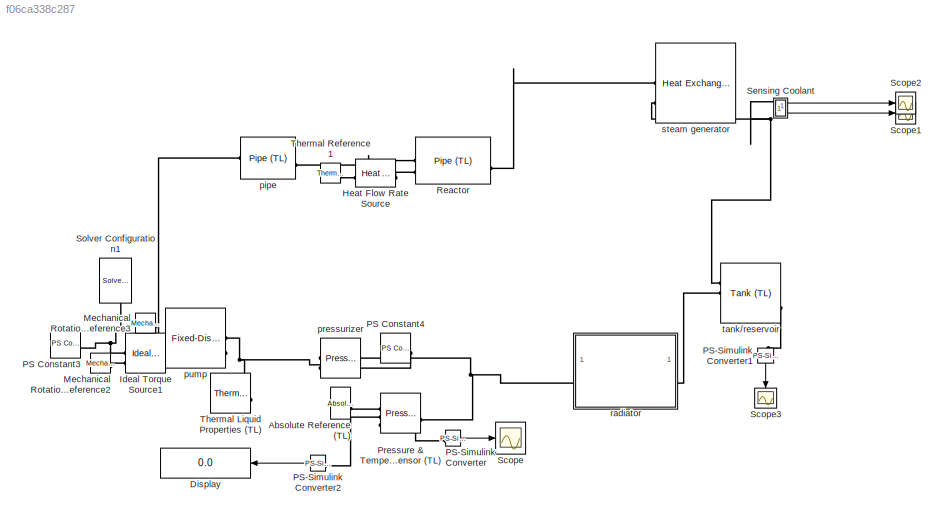
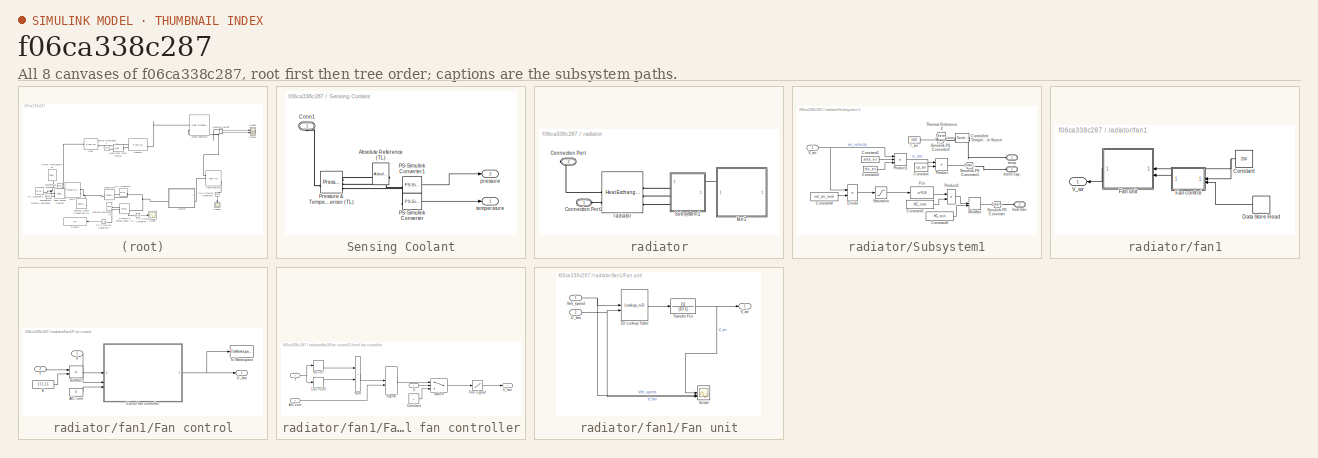
[diagram: thumbnail index - all 8 canvases of the model, root first then tree order]
MODEL slx_f06ca338c287
KIND model
CONFIG AbsTol = auto
CONFIG EnableMultiTasking = off
CONFIG FixedStep = auto
CONFIG MaxStep = auto
CONFIG MinStep = auto
CONFIG RelTol = 1e-3
CONFIG SampleTimeConstraint = Unconstrained
CONFIG SolverName = VariableStepAuto
CONFIG StartTime = 0.0
CONFIG StopTime = 60*10
BLOCK [Reference] Absolute Reference (TL)  REF=fl_lib/Thermal Liquid/Elements/Absolute Reference
(TL)
  SourceBlock = fl_lib/Thermal Liquid/Elements/Absolute Reference\n(TL)
  SourceType = Absolute Reference\n(TL)
BLOCK [Display] Display
  Decimation = 1
BLOCK [Reference] Heat Flow Rate Source  REF=fl_lib/Thermal/Thermal Sources/Heat Flow Rate
Source
  SourceBlock = fl_lib/Thermal/Thermal Sources/Heat Flow Rate\nSource
  SourceType = Heat Flow Rate\nSource
BLOCK [Reference] Ideal Torque Source1  REF=fl_lib/Mechanical/Mechanical Sources/Ideal Torque Source
  SourceBlock = fl_lib/Mechanical/Mechanical Sources/Ideal Torque Source
  SourceType = Ideal Torque Source
BLOCK [Reference] Mechanical Rotational Reference2  REF=fl_lib/Mechanical/Rotational Elements/Mechanical
Rotational Reference
  SourceBlock = fl_lib/Mechanical/Rotational Elements/Mechanical\nRotational Reference
  SourceType = Mechanical\nRotational Reference
BLOCK [Reference] Mechanical Rotational Reference3  REF=fl_lib/Mechanical/Rotational Elements/Mechanical
Rotational Reference
  SourceBlock = fl_lib/Mechanical/Rotational Elements/Mechanical\nRotational Reference
  SourceType = Mechanical\nRotational Reference
BLOCK [Reference] PS Constant3  REF=fl_lib/Physical Signals/Sources/PS Constant
  SourceBlock = fl_lib/Physical Signals/Sources/PS Constant
  SourceType = PS Constant
BLOCK [Reference] PS Constant4  REF=fl_lib/Physical Signals/Sources/PS Constant
  NameLocation = top
  SourceBlock = fl_lib/Physical Signals/Sources/PS Constant
  SourceType = PS Constant
BLOCK [Reference] PS-Simulink Converter  REF=nesl_utility/PS-Simulink
Converter
  SourceBlock = nesl_utility/PS-Simulink\nConverter
  SourceType = PS-Simulink\nConverter
BLOCK [Reference] PS-Simulink Converter1  REF=nesl_utility/PS-Simulink
Converter
  NameLocation = left
  SourceBlock = nesl_utility/PS-Simulink\nConverter
  SourceType = PS-Simulink\nConverter
BLOCK [Reference] PS-Simulink Converter2  REF=nesl_utility/PS-Simulink
Converter
  SourceBlock = nesl_utility/PS-Simulink\nConverter
  SourceType = PS-Simulink\nConverter
BLOCK [Reference] Pressure & Temperature Sensor (TL)  REF=fl_lib/Thermal Liquid/Sensors/Pressure &
Temperature Sensor
(TL)
  SourceBlock = fl_lib/Thermal Liquid/Sensors/Pressure &\nTemperature Sensor\n(TL)
  SourceType = Pressure &\nTemperature Sensor\n(TL)
BLOCK [Reference] Reactor   REF=fl_lib/Thermal Liquid/Elements/Pipe (TL)
  SourceBlock = fl_lib/Thermal Liquid/Elements/Pipe (TL)
  SourceType = Pipe (TL)
BLOCK [Scope] Scope
  Floating = off
  NumInputPorts = 1
  ScopeSpecificationString = Simulink.scopes.TimeScopeBlockCfg('CurrentConfiguration', extmgr.ConfigurationSet(extmgr.Configuration('Core','General UI',true),extmgr.Configuration('Core','Source UI',true),extmgr.Configuration('Sources','WiredSimulink',true,'DataLoggingVariableName','ScopeData3'),extmgr.Configuration('Visuals','Time Domain',true),extmgr.Configuration('Tools','Plot Navigation',true),extmgr.Configuration('Tools',...<+40ch>
BLOCK [Scope] Scope1
  Floating = off
  NumInputPorts = 1
  ScopeSpecificationString = Simulink.scopes.TimeScopeBlockCfg('CurrentConfiguration', extmgr.ConfigurationSet(extmgr.Configuration('Core','General UI',true),extmgr.Configuration('Core','Source UI',true),extmgr.Configuration('Sources','WiredSimulink',true,'DataLoggingVariableName','ScopeData2'),extmgr.Configuration('Visuals','Time Domain',true,'SerializedDisplays',{struct('MinYLimReal','284.55579','MaxYLimReal','370.31845','Y...<+1968ch>
BLOCK [Scope] Scope2
  Floating = off
  NumInputPorts = 1
  ScopeSpecificationString = Simulink.scopes.TimeScopeBlockCfg('CurrentConfiguration', extmgr.ConfigurationSet(extmgr.Configuration('Core','General UI',true),extmgr.Configuration('Core','Source UI',true),extmgr.Configuration('Sources','WiredSimulink',true,'DataLoggingVariableName','ScopeData1'),extmgr.Configuration('Visuals','Time Domain',true,'SerializedDisplays',{struct('MinYLimReal','291.20123','MaxYLimReal','310.68976','Y...<+1985ch>
BLOCK [Scope] Scope3
  Floating = off
  NameLocation = left
  NumInputPorts = 1
  ScopeSpecificationString = Simulink.scopes.TimeScopeBlockCfg('CurrentConfiguration', extmgr.ConfigurationSet(extmgr.Configuration('Core','General UI',true),extmgr.Configuration('Core','Source UI',true),extmgr.Configuration('Sources','WiredSimulink',true),extmgr.Configuration('Visuals','Time Domain',true,'SerializedDisplays',{struct('MinYLimReal','292.06888','MaxYLimReal','302.88004','YLabelReal','','MinYLimMag','292.06888',...<+1947ch>
BLOCK [SubSystem] Sensing Coolant
  NameLocation = top
  PortSchema = {"entries":[{"content":{"sides":[{"content":{},"type":"ConnectorPlacement.EquallySpacedRectSide","uuid":"465a130a-ef17-4ce2-8d1e-67732ae6c758"},{"content":{"connectorIds":["Out1","Out2"],"side":"RIGHT"},"type":"ConnectorPlacement.EquallySpacedRectSide","uuid":"d3fa0660-2c6f-4f5b-9b41-b5703d02d527"},{"content":{"connectorIds":["LConn1"],"side":"TOP"},"type":"ConnectorPlacement.EquallySpacedRectSide...<+233ch>
BLOCK [Reference] Sensing Coolant/Absolute Reference (TL)  REF=fl_lib/Thermal Liquid/Elements/Absolute Reference
(TL)
  NameLocation = top
  SourceBlock = fl_lib/Thermal Liquid/Elements/Absolute Reference\n(TL)
  SourceType = Absolute Reference\n(TL)
BLOCK [PMIOPort] Sensing Coolant/Conn1
  NameLocation = right
  Side = Left
BLOCK [Reference] Sensing Coolant/PS-Simulink Converter  REF=nesl_utility/PS-Simulink
Converter
  SourceBlock = nesl_utility/PS-Simulink\nConverter
  SourceType = PS-Simulink\nConverter
BLOCK [Reference] Sensing Coolant/PS-Simulink Converter1  REF=nesl_utility/PS-Simulink
Converter
  SourceBlock = nesl_utility/PS-Simulink\nConverter
  SourceType = PS-Simulink\nConverter
BLOCK [Reference] Sensing Coolant/Pressure & Temperature Sensor (TL)  REF=fl_lib/Thermal Liquid/Sensors/Pressure &
Temperature Sensor
(TL)
  SourceBlock = fl_lib/Thermal Liquid/Sensors/Pressure &\nTemperature Sensor\n(TL)
  SourceType = Pressure &\nTemperature Sensor\n(TL)
BLOCK [Outport] Sensing Coolant/pressure
  Port = 2
  VectorParamsAs1DForOutWhenUnconnected = off
BLOCK [Outport] Sensing Coolant/temperature
  VectorParamsAs1DForOutWhenUnconnected = off
BLOCK [Reference] Solver Configuration1  REF=nesl_utility/Solver
Configuration
  NameLocation = left
  SourceBlock = nesl_utility/Solver\nConfiguration
  SourceType = Solver\nConfiguration
BLOCK [Reference] Thermal Liquid Properties (TL)  REF=SimscapeFluids_lib/Thermal Liquid/Utilities/Thermal Liquid
Properties (TL)
  SourceBlock = SimscapeFluids_lib/Thermal Liquid/Utilities/Thermal Liquid\nProperties (TL)
  SourceType = Thermal Liquid\nProperties (TL)
BLOCK [Reference] Thermal Reference1  REF=fl_lib/Thermal/Thermal Elements/Thermal Reference
  SourceBlock = fl_lib/Thermal/Thermal Elements/Thermal Reference
  SourceType = Thermal Reference
BLOCK [Reference] pipe  REF=fl_lib/Thermal Liquid/Elements/Pipe (TL)
  SourceBlock = fl_lib/Thermal Liquid/Elements/Pipe (TL)
  SourceType = Pipe (TL)
BLOCK [Reference] pressurizer  REF=fl_lib/Thermal Liquid/Sources/Pressure Source (TL)
  NameLocation = top
  SourceBlock = fl_lib/Thermal Liquid/Sources/Pressure Source (TL)
  SourceType = Pressure Source (TL)
BLOCK [Reference] pump  REF=SimscapeFluids_lib/Thermal Liquid/Pumps & Motors/Fixed-Displacement
Pump (TL)
  NameLocation = top
  SourceBlock = SimscapeFluids_lib/Thermal Liquid/Pumps & Motors/Fixed-Displacement\nPump (TL)
  SourceType = Fixed-Displacement\nPump (TL)
BLOCK [SubSystem] radiator
BLOCK [PMIOPort] radiator/Connection Port
  Port = 2
  Side = Right
BLOCK [PMIOPort] radiator/Connection Port1
  Side = Left
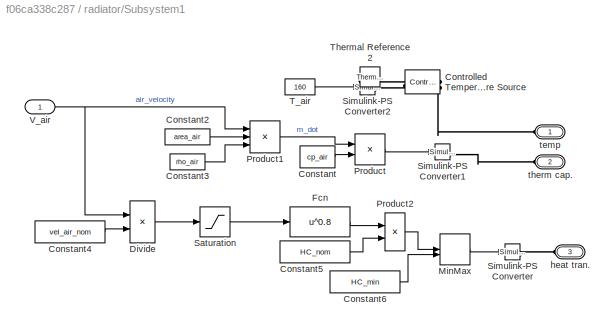
BLOCK [SubSystem] radiator/Subsystem1
  PortSchema = {"entries":[{"content":{"sides":[{"content":{"connectorIds":["LConn1","LConn2","LConn3"]},"type":"ConnectorPlacement.EquallySpacedRectSide","uuid":"72133f1d-af98-41fb-a011-0de9f3b1a3a6"},{"content":{"connectorIds":["In1"],"side":"RIGHT"},"type":"ConnectorPlacement.EquallySpacedRectSide","uuid":"035c5423-12ad-4975-9f77-809a6ff9e1f7"},{"content":{"connectorIds":[],"side":"TOP"},"type":"ConnectorPlac...<+260ch>
BLOCK [Constant] radiator/Subsystem1/Constant
  NameLocation = top
  Value = cp_air
BLOCK [Constant] radiator/Subsystem1/Constant2
  Value = area_air
BLOCK [Constant] radiator/Subsystem1/Constant3
  Value = rho_air
BLOCK [Constant] radiator/Subsystem1/Constant4
  Value = vel_air_nom
BLOCK [Constant] radiator/Subsystem1/Constant5
  Value = HC_nom
BLOCK [Constant] radiator/Subsystem1/Constant6
  Value = HC_min
BLOCK [Reference] radiator/Subsystem1/Controlled Temperature Source  REF=fl_lib/Thermal/Thermal Sources/Controlled
Temperature Source
  NameLocation = top
  SourceBlock = fl_lib/Thermal/Thermal Sources/Controlled\nTemperature Source
  SourceType = Controlled\nTemperature Source
BLOCK [Product] radiator/Subsystem1/Divide
  Inputs = */
BLOCK [Fcn] radiator/Subsystem1/Fcn
  Expr = u^0.8
BLOCK [MinMax] radiator/Subsystem1/MinMax
  Function = max
  Inputs = 2
BLOCK [Product] radiator/Subsystem1/Product
BLOCK [Product] radiator/Subsystem1/Product1
  Inputs = 3
BLOCK [Product] radiator/Subsystem1/Product2
BLOCK [Saturate] radiator/Subsystem1/Saturation
  LowerLimit = 0
  UpperLimit = inf
BLOCK [Reference] radiator/Subsystem1/Simulink-PS Converter  REF=nesl_utility/Simulink-PS
Converter
  NameLocation = top
  SourceBlock = nesl_utility/Simulink-PS\nConverter
  SourceType = Simulink-PS\nConverter
BLOCK [Reference] radiator/Subsystem1/Simulink-PS Converter1  REF=nesl_utility/Simulink-PS
Converter
  NameLocation = top
  SourceBlock = nesl_utility/Simulink-PS\nConverter
  SourceType = Simulink-PS\nConverter
BLOCK [Reference] radiator/Subsystem1/Simulink-PS Converter2  REF=nesl_utility/Simulink-PS
Converter
  SourceBlock = nesl_utility/Simulink-PS\nConverter
  SourceType = Simulink-PS\nConverter
BLOCK [Constant] radiator/Subsystem1/T_air
  Value = 160
BLOCK [Reference] radiator/Subsystem1/Thermal Reference2  REF=fl_lib/Thermal/Thermal Elements/Thermal Reference
  NameLocation = top
  SourceBlock = fl_lib/Thermal/Thermal Elements/Thermal Reference
  SourceType = Thermal Reference
BLOCK [Inport] radiator/Subsystem1/V_air
BLOCK [PMIOPort] radiator/Subsystem1/heat tran.
  NameLocation = top
  Port = 3
  Side = Left
BLOCK [PMIOPort] radiator/Subsystem1/temp
  NameLocation = top
  Side = Left
BLOCK [PMIOPort] radiator/Subsystem1/therm cap.
  NameLocation = top
  Port = 2
  Side = Left
BLOCK [SubSystem] radiator/fan1
  NameLocation = top
BLOCK [Constant] radiator/fan1/Constant
  NameLocation = top
  Value = 250
BLOCK [DataStoreRead] radiator/fan1/Data Store Read
  IndexOptions = Index vector (dialog)
  Indices = 1
  NameLocation = top
  OutputSizes = 1
BLOCK [SubSystem] radiator/fan1/Fan control
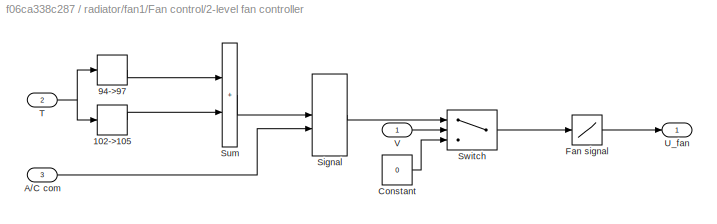
BLOCK [SubSystem] radiator/fan1/Fan control/2-level fan controller
BLOCK [Relay] radiator/fan1/Fan control/2-level fan controller/102->105
  OffSwitchValue = T_level2(2)
  OnSwitchValue = T_level2(1)
BLOCK [Relay] radiator/fan1/Fan control/2-level fan controller/94->97
  OffSwitchValue = T_level1(2)
  OnSwitchValue = T_level1(1)
BLOCK [Inport] radiator/fan1/Fan control/2-level fan controller/A//C com
  Port = 3
BLOCK [Constant] radiator/fan1/Fan control/2-level fan controller/Constant
  Value = 0
BLOCK [Lookup] radiator/fan1/Fan control/2-level fan controller/Fan signal
  InputValues = [0, 1, 2]
  Table = [0, 5, 14.4]
BLOCK [MinMax] radiator/fan1/Fan control/2-level fan controller/Signal
  Function = max
  InputSameDT = on
  Inputs = 2
  SaturateOnIntegerOverflow = on
BLOCK [Sum] radiator/fan1/Fan control/2-level fan controller/Sum
  IconShape = rectangular
  InputSameDT = on
  Inputs = 2
  OutDataTypeStr = Inherit: Same as first input
  SaturateOnIntegerOverflow = on
BLOCK [Switch] radiator/fan1/Fan control/2-level fan controller/Switch
  Criteria = u2 > Threshold
  InputSameDT = off
  SaturateOnIntegerOverflow = off
  Threshold = 1e-6
  ZeroCross = off
BLOCK [Inport] radiator/fan1/Fan control/2-level fan controller/T
  Port = 2
BLOCK [Outport] radiator/fan1/Fan control/2-level fan controller/U_fan
  VectorParamsAs1DForOutWhenUnconnected = off
BLOCK [Inport] radiator/fan1/Fan control/2-level fan controller/V
BLOCK [Constant] radiator/fan1/Fan control/A//C com
  Value = 0
BLOCK [Constant] radiator/fan1/Fan control/K
  Value = 273.15
BLOCK [Sum] radiator/fan1/Fan control/Subtract
  IconShape = rectangular
  Inputs = +-
BLOCK [Inport] radiator/fan1/Fan control/T
  Port = 2
BLOCK [ToWorkspace] radiator/fan1/Fan control/To Workspace
  FixptAsFi = on
  MaxDataPoints = inf
  SampleTime = -1
  VariableName = Fan_volt
BLOCK [Outport] radiator/fan1/Fan control/U_fan
  VectorParamsAs1DForOutWhenUnconnected = off
BLOCK [Inport] radiator/fan1/Fan control/V
BLOCK [SubSystem] radiator/fan1/Fan unit
BLOCK [Lookup_n-D] radiator/fan1/Fan unit/2D Lookup Table
  BreakpointsForDimension1 = [0,40,90,110,150,180,198]
  BreakpointsForDimension2 = [0 14.4]
  InputPortMap = u0,u1
  InternalRulePriority = Speed
  LookupTableObject = ''
  RndMeth = Simplest
  Table = [0,0.8,2.2,2.7,3.6,4.1,4.6; 1.5,2.3,3.2,3.5,4.3,4.8,5.1]'
BLOCK [Scope] radiator/fan1/Fan unit/Scope
  Floating = off
  NumInputPorts = 3
  ScopeSpecificationString = Simulink.scopes.TimeScopeBlockCfg('CurrentConfiguration', extmgr.ConfigurationSet(extmgr.Configuration('Core','General UI',true),extmgr.Configuration('Core','Source UI',true),extmgr.Configuration('Sources','WiredSimulink',true,'DataLoggingVariableName','ScopeData1'),extmgr.Configuration('Visuals','Time Domain',true,'SerializedDisplays',{struct('MinYLimReal','-31.25','MaxYLimReal','281.25','YLabelR...<+1403ch>
BLOCK [TransferFcn] radiator/fan1/Fan unit/Transfer Fcn
  Denominator = [10 1]
BLOCK [Inport] radiator/fan1/Fan unit/U_fan
  Port = 2
BLOCK [Outport] radiator/fan1/Fan unit/V_air
  VectorParamsAs1DForOutWhenUnconnected = off
BLOCK [Inport] radiator/fan1/Fan unit/Veh_speed
BLOCK [Outport] radiator/fan1/V_air
BLOCK [Reference] radiator/radiator  REF=SimscapeFluids_lib/Heat Exchangers/Thermal Liquid/Heat Exchanger (TL)
  NameLocation = top
  SourceBlock = SimscapeFluids_lib/Heat Exchangers/Thermal Liquid/Heat Exchanger (TL)
  SourceType = Heat Exchanger (TL)
BLOCK [Reference] steam generator  REF=SimscapeFluids_lib/Heat Exchangers/Thermal Liquid/Heat Exchanger
(TL-TL)
  SourceBlock = SimscapeFluids_lib/Heat Exchangers/Thermal Liquid/Heat Exchanger\n(TL-TL)
  SourceType = Heat Exchanger\n(TL-TL)
BLOCK [Reference] tank//reservoir  REF=SimscapeFluids_lib/Thermal Liquid/Tanks & Accumulators/Tank (TL)
  SourceBlock = SimscapeFluids_lib/Thermal Liquid/Tanks & Accumulators/Tank (TL)
  SourceType = Tank (TL)
LINE PS-Simulink Converter1:1 -> Scope3:1
LINE PS-Simulink Converter2:1 -> Display:1
LINE PS-Simulink Converter:1 -> Scope:1
LINE Sensing Coolant/PS-Simulink Converter1:1 -> Sensing Coolant/pressure:1
LINE Sensing Coolant/PS-Simulink Converter:1 -> Sensing Coolant/temperature:1
LINE Sensing Coolant:1 -> Scope2:1
LINE Sensing Coolant:2 -> Scope1:1
LINE radiator/Subsystem1/Constant2:1 -> radiator/Subsystem1/Product1:2
LINE radiator/Subsystem1/Constant3:1 -> radiator/Subsystem1/Product1:3
LINE radiator/Subsystem1/Constant4:1 -> radiator/Subsystem1/Divide:2
LINE radiator/Subsystem1/Constant5:1 -> radiator/Subsystem1/Product2:2
LINE radiator/Subsystem1/Constant6:1 -> radiator/Subsystem1/MinMax:2
LINE radiator/Subsystem1/Constant:1 -> radiator/Subsystem1/Product:2
LINE radiator/Subsystem1/Divide:1 -> radiator/Subsystem1/Saturation:1
LINE radiator/Subsystem1/Fcn:1 -> radiator/Subsystem1/Product2:1
LINE radiator/Subsystem1/MinMax:1 -> radiator/Subsystem1/Simulink-PS Converter:1
LINE radiator/Subsystem1/Product1:1 -> radiator/Subsystem1/Product:1
LINE radiator/Subsystem1/Product2:1 -> radiator/Subsystem1/MinMax:1
LINE radiator/Subsystem1/Product:1 -> radiator/Subsystem1/Simulink-PS Converter1:1
LINE radiator/Subsystem1/Saturation:1 -> radiator/Subsystem1/Fcn:1
LINE radiator/Subsystem1/T_air:1 -> radiator/Subsystem1/Simulink-PS Converter2:1
NET radiator/Subsystem1/V_air:1 -> radiator/Subsystem1/Divide:1, radiator/Subsystem1/Product1:1
NET radiator/fan1/Constant:1 -> radiator/fan1/Fan control:1, radiator/fan1/Fan unit:1
LINE radiator/fan1/Data Store Read:1 -> radiator/fan1/Fan control:2
LINE radiator/fan1/Fan control/2-level fan controller/102->105:1 -> radiator/fan1/Fan control/2-level fan controller/Sum:2
LINE radiator/fan1/Fan control/2-level fan controller/94->97:1 -> radiator/fan1/Fan control/2-level fan controller/Sum:1
LINE radiator/fan1/Fan control/2-level fan controller/A//C com:1 -> radiator/fan1/Fan control/2-level fan controller/Signal:2
LINE radiator/fan1/Fan control/2-level fan controller/Constant:1 -> radiator/fan1/Fan control/2-level fan controller/Switch:3
LINE radiator/fan1/Fan control/2-level fan controller/Fan signal:1 -> radiator/fan1/Fan control/2-level fan controller/U_fan:1
LINE radiator/fan1/Fan control/2-level fan controller/Signal:1 -> radiator/fan1/Fan control/2-level fan controller/Switch:1
LINE radiator/fan1/Fan control/2-level fan controller/Sum:1 -> radiator/fan1/Fan control/2-level fan controller/Signal:1
LINE radiator/fan1/Fan control/2-level fan controller/Switch:1 -> radiator/fan1/Fan control/2-level fan controller/Fan signal:1
NET radiator/fan1/Fan control/2-level fan controller/T:1 -> radiator/fan1/Fan control/2-level fan controller/102->105:1, radiator/fan1/Fan control/2-level fan controller/94->97:1
LINE radiator/fan1/Fan control/2-level fan controller/V:1 -> radiator/fan1/Fan control/2-level fan controller/Switch:2
NET radiator/fan1/Fan control/2-level fan controller:1 -> radiator/fan1/Fan control/To Workspace:1, radiator/fan1/Fan control/U_fan:1
LINE radiator/fan1/Fan control/A//C com:1 -> radiator/fan1/Fan control/2-level fan controller:3
LINE radiator/fan1/Fan control/K:1 -> radiator/fan1/Fan control/Subtract:2
LINE radiator/fan1/Fan control/Subtract:1 -> radiator/fan1/Fan control/2-level fan controller:2
LINE radiator/fan1/Fan control/T:1 -> radiator/fan1/Fan control/Subtract:1
LINE radiator/fan1/Fan control/V:1 -> radiator/fan1/Fan control/2-level fan controller:1
LINE radiator/fan1/Fan control:1 -> radiator/fan1/Fan unit:2
LINE radiator/fan1/Fan unit/2D Lookup Table:1 -> radiator/fan1/Fan unit/Transfer Fcn:1
NET radiator/fan1/Fan unit/Transfer Fcn:1 -> radiator/fan1/Fan unit/Scope:1, radiator/fan1/Fan unit/V_air:1
NET radiator/fan1/Fan unit/U_fan:1 -> radiator/fan1/Fan unit/2D Lookup Table:2, radiator/fan1/Fan unit/Scope:3
NET radiator/fan1/Fan unit/Veh_speed:1 -> radiator/fan1/Fan unit/2D Lookup Table:1, radiator/fan1/Fan unit/Scope:2
LINE radiator/fan1/Fan unit:1 -> radiator/fan1/V_air:1
LINE radiator/fan1:1 -> radiator/Subsystem1:1
PLINE Absolute Reference (TL):LConn1 -- Pressure & Temperature Sensor (TL):RConn1
PLINE Heat Flow Rate Source:LConn1 -- Reactor :LConn2
PLINE Heat Flow Rate Source:RConn1 -- Thermal Reference1:LConn1
PLINE Ideal Torque Source1:LConn1 -- pump:RConn1
PNET net1: Ideal Torque Source1:RConn1 -- PS Constant3:RConn1 -- Solver Configuration1:RConn1
PLINE Ideal Torque Source1:RConn2 -- Mechanical Rotational Reference2:LConn1
PLINE Mechanical Rotational Reference3:LConn1 -- pump:RConn2
PLINE PS Constant4:RConn1 -- pressurizer:LConn2
PLINE PS-Simulink Converter1:LConn1 -- tank//reservoir:RConn2
PLINE PS-Simulink Converter2:LConn1 -- Pressure & Temperature Sensor (TL):RConn2
PLINE PS-Simulink Converter:LConn1 -- Pressure & Temperature Sensor (TL):RConn3
PNET net2: Pressure & Temperature Sensor (TL):LConn1 -- pressurizer:LConn1 -- radiator:LConn1
PLINE Reactor :LConn1 -- pipe:RConn1
PLINE Reactor :RConn1 -- steam generator:LConn1
PLINE Sensing Coolant/Absolute Reference (TL):LConn1 -- Sensing Coolant/Pressure & Temperature Sensor (TL):RConn1
PLINE Sensing Coolant/Conn1:RConn1 -- Sensing Coolant/Pressure & Temperature Sensor (TL):LConn1
PLINE Sensing Coolant/PS-Simulink Converter1:LConn1 -- Sensing Coolant/Pressure & Temperature Sensor (TL):RConn2
PLINE Sensing Coolant/PS-Simulink Converter:LConn1 -- Sensing Coolant/Pressure & Temperature Sensor (TL):RConn3
PNET net3: Sensing Coolant:LConn1 -- steam generator:LConn2 -- tank//reservoir:LConn1
PNET net4: Thermal Liquid Properties (TL):RConn1 -- pressurizer:RConn1 -- pump:LConn1
PLINE pipe:LConn1 -- pump:LConn2
PLINE radiator/Connection Port1:RConn1 -- radiator/radiator:LConn2
PLINE radiator/Connection Port:RConn1 -- radiator/radiator:LConn1
PLINE radiator/Subsystem1/Controlled Temperature Source:LConn1 -- radiator/Subsystem1/temp:RConn1
PLINE radiator/Subsystem1/Controlled Temperature Source:RConn1 -- radiator/Subsystem1/Simulink-PS Converter2:RConn1
PLINE radiator/Subsystem1/Controlled Temperature Source:RConn2 -- radiator/Subsystem1/Thermal Reference2:LConn1
PLINE radiator/Subsystem1/Simulink-PS Converter1:RConn1 -- radiator/Subsystem1/therm cap.:RConn1
PLINE radiator/Subsystem1/Simulink-PS Converter:RConn1 -- radiator/Subsystem1/heat tran.:RConn1
PLINE radiator/Subsystem1:LConn1 -- radiator/radiator:RConn1
PLINE radiator/Subsystem1:LConn2 -- radiator/radiator:RConn2
PLINE radiator/Subsystem1:LConn3 -- radiator/radiator:RConn3
PLINE radiator:RConn1 -- tank//reservoir:LConn2
note: NET lines group one-source signal fan-out (src -> all destinations, sorted); 1:1 wires keep LINE; PNET lines group multi-terminal physical nets as a canonical sorted terminal list (undirected conserving connections); 2-terminal nets keep the pairwise PLINE form
